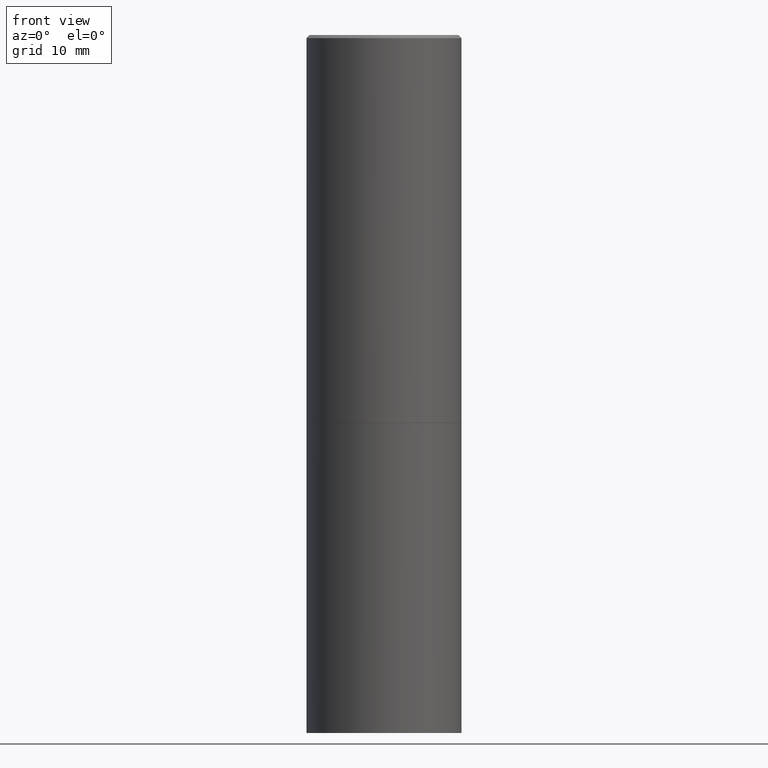
[diagram: clean part render]
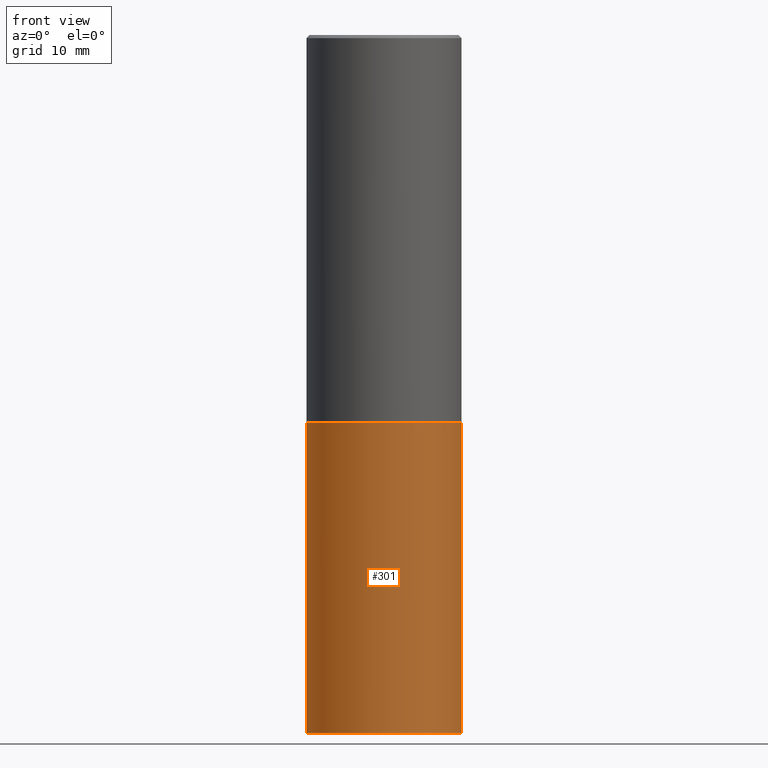
[diagram: same view with one face highlighted and labeled with its STEP entity id]
A machine part, front view. The second image highlights one B-rep face of the part: STEP entity #301.
In plain terms, the highlighted cylindrical surface (partial cylindrical patch) has radius 12.7 mm, axis along (-0, 0, 1).
Its self-contained STEP definition (entity closure, byte-faithful):
#1 = DIRECTION ( 'NONE',  ( -2.445468806185136597E-29, 3.491481338843145583E-15, 1.000000000000000000 ) ) ;
#13 = VERTEX_POINT ( 'NONE', #146 ) ;
#22 = CARTESIAN_POINT ( 'NONE',  ( 0.5000000000000000000, -1.920314736363729025E-14, -4.500000000000000000 ) ) ;
#27 = EDGE_CURVE ( 'NONE', #205, #13, #181, .T. ) ;
#31 = CIRCLE ( 'NONE', #103, 0.5000000000000000000 ) ;
#32 = CARTESIAN_POINT ( 'NONE',  ( 1.100460962783311469E-28, -1.571166602479415690E-14, -4.500000000000000000 ) ) ;
#40 = DIRECTION ( 'NONE',  ( -2.445468806185136877E-29, 3.491481338843145188E-15, 1.000000000000000000 ) ) ;
#65 = VERTEX_POINT ( 'NONE', #189 ) ;
#82 = DIRECTION ( 'NONE',  ( -2.445468806185136597E-29, 3.491481338843145583E-15, 1.000000000000000000 ) ) ;
#88 = CARTESIAN_POINT ( 'NONE',  ( 0.000000000000000000, 0.000000000000000000, 0.000000000000000000 ) ) ;
#91 = DIRECTION ( 'NONE',  ( -2.445468806185136597E-29, 3.491481338843145583E-15, 1.000000000000000000 ) ) ;
#98 = CIRCLE ( 'NONE', #290, 0.5000000000000000000 ) ;
#103 = AXIS2_PLACEMENT_3D ( 'NONE', #32, #1, #231 ) ;
#111 = CARTESIAN_POINT ( 'NONE',  ( 6.113672015462842613E-29, -8.728703347107864943E-15, -2.500000000000000000 ) ) ;
#118 = VECTOR ( 'NONE', #40, 39.37007874015748143 ) ;
#123 = VECTOR ( 'NONE', #361, 39.37007874015748143 ) ;
#144 = VERTEX_POINT ( 'NONE', #355 ) ;
#146 = CARTESIAN_POINT ( 'NONE',  ( 0.5000000000000000000, -1.222018468595099830E-14, -2.500000000000000000 ) ) ;
#170 = FACE_OUTER_BOUND ( 'NONE', #299, .T. ) ;
#179 = AXIS2_PLACEMENT_3D ( 'NONE', #88, #82, #364 ) ;
#181 = LINE ( 'NONE', #302, #118 ) ;
#189 = CARTESIAN_POINT ( 'NONE',  ( -0.5000000000000000000, -8.667471007150509990E-15, -4.500000000000000000 ) ) ;
#205 = VERTEX_POINT ( 'NONE', #22 ) ;
#206 = ORIENTED_EDGE ( 'NONE', *, *, #27, .T. ) ;
#224 = CYLINDRICAL_SURFACE ( 'NONE', #179, 0.5000000000000000000 ) ;
#231 = DIRECTION ( 'NONE',  ( 1.000000000000000000, -6.982962677686266711E-15, 0.000000000000000000 ) ) ;
#265 = EDGE_CURVE ( 'NONE', #65, #205, #31, .T. ) ;
#289 = CARTESIAN_POINT ( 'NONE',  ( -0.5000000000000000000, 3.552713678800500929E-15, -2.459467545127452891E-29 ) ) ;
#290 = AXIS2_PLACEMENT_3D ( 'NONE', #111, #91, #311 ) ;
#296 = ORIENTED_EDGE ( 'NONE', *, *, #265, .T. ) ;
#299 = EDGE_LOOP ( 'NONE', ( #351, #296, #206, #317 ) ) ;
#301 = ADVANCED_FACE ( 'NONE', ( #170 ), #224, .T. ) ;
#302 = CARTESIAN_POINT ( 'NONE',  ( 0.5000000000000000000, -3.491481338843133355E-15, 2.438088387897967896E-29 ) ) ;
#311 = DIRECTION ( 'NONE',  ( 1.000000000000000000, -6.982962677686269077E-15, 0.000000000000000000 ) ) ;
#316 = LINE ( 'NONE', #289, #123 ) ;
#317 = ORIENTED_EDGE ( 'NONE', *, *, #363, .F. ) ;
#322 = EDGE_CURVE ( 'NONE', #65, #144, #316, .T. ) ;
#351 = ORIENTED_EDGE ( 'NONE', *, *, #322, .F. ) ;
#355 = CARTESIAN_POINT ( 'NONE',  ( -0.5000000000000000000, -8.667471007150509990E-15, -2.500000000000000000 ) ) ;
#361 = DIRECTION ( 'NONE',  ( -2.445468806185136877E-29, 3.491481338843145188E-15, 1.000000000000000000 ) ) ;
#363 = EDGE_CURVE ( 'NONE', #144, #13, #98, .T. ) ;
#364 = DIRECTION ( 'NONE',  ( 1.000000000000000000, -6.982962677686266711E-15, 4.876176775795935793E-29 ) ) ;